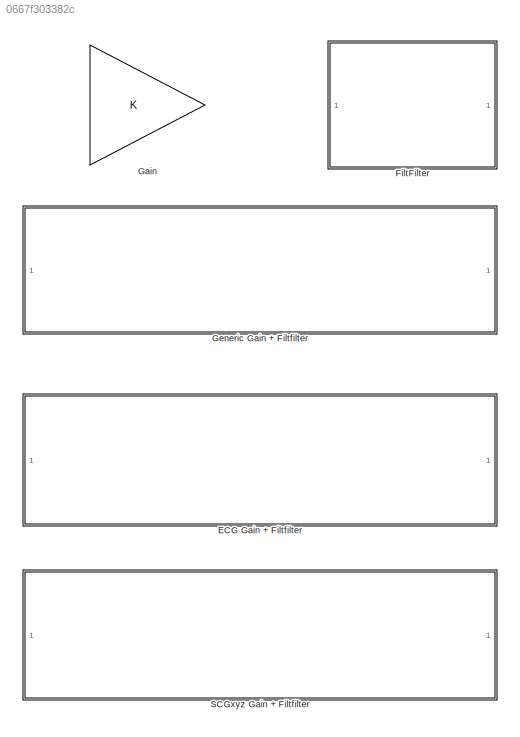
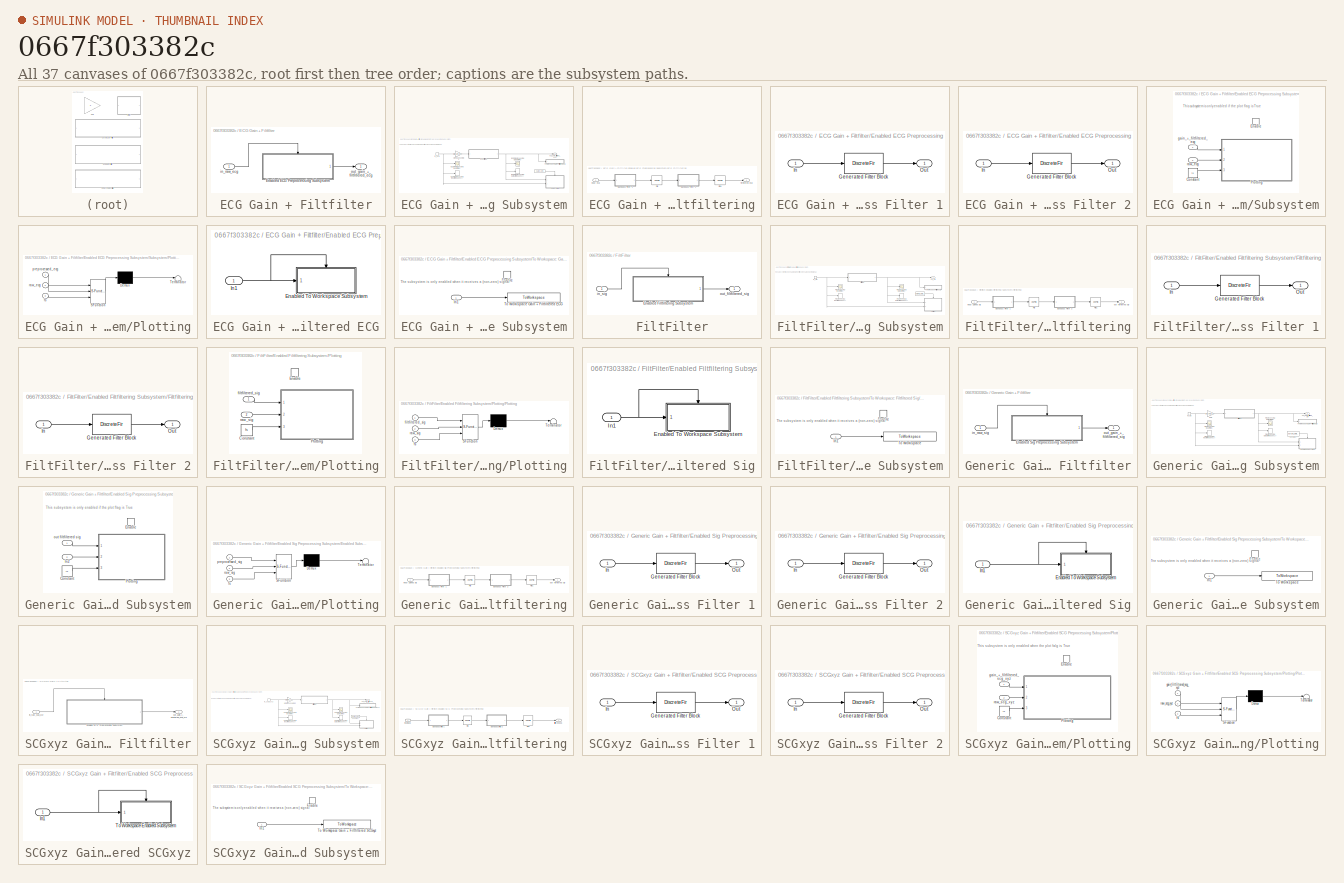
[diagram: thumbnail index - all 37 canvases of the model, root first then tree order]
MODEL slx_0667f303382c
KIND library
CONFIG AbsTol = auto
CONFIG EnableMultiTasking = off
CONFIG FixedStep = auto
CONFIG MaxStep = auto
CONFIG MinStep = auto
CONFIG RelTol = 1e-3
CONFIG SampleTimeConstraint = Unconstrained
CONFIG SolverName = VariableStepAuto
CONFIG StartTime = 0.0
CONFIG StopTime = 10.0
BLOCK [SubSystem] ECG Gain + Filtfilter
  Ports = [1, 1]
  RequestExecContextInheritance = off
BLOCK [SubSystem] ECG Gain + Filtfilter/Enabled ECG Preprocessing Subsystem
  Ports = [0, 1, 1]
  RequestExecContextInheritance = off
  TreatAsAtomicUnit = on
BLOCK [Constant] ECG Gain + Filtfilter/Enabled ECG Preprocessing Subsystem/ 
  Value = param_plotflag
BLOCK [SubSystem] ECG Gain + Filtfilter/Enabled ECG Preprocessing Subsystem/ECG Filtfiltering
  Ports = [1, 1]
  RequestExecContextInheritance = off
BLOCK [SubSystem] ECG Gain + Filtfilter/Enabled ECG Preprocessing Subsystem/ECG Filtfiltering/Bandpass Filter 1
  CopyFcn = fdesignblkfcn(gcbh, {'CopyFcn'});
  DialogController = fdesignblkfcn
  InitFcn = fdesignblkfcn(gcbh, {'InitFcn'});
  Ports = [1, 1]
  RequestExecContextInheritance = off
  UserDataPersistent = on
BLOCK [DiscreteFir] ECG Gain + Filtfilter/Enabled ECG Preprocessing Subsystem/ECG Filtfiltering/Bandpass Filter 1/Generated Filter Block
  Coefficients = [-0.0114243088354877773 0.00587624110456374388 0.00413946068324517157 0.00264334557424035672 0.00138774422276622192 0.00039597756815762733 -0.000357391963790950132 -0.000870027328167087902 -0.00118474210009046274 -0.0013114772414377189 -0.00130211118137258525 -0.00117028348293094116 -0.000969555288066135598 -0.000709991739662891794 -0.000441672338585462343 -0.000165596169411169614 7.38618239838010...<+24253ch>  <repeated x6 — deduplicated; at blocks: Generated Filter Block>
  InputPortMap = u0
  InputProcessing = Columns as channels (frame based)
  OutputPortMap = o0
  Ports = [1, 1]
  Tag = BlockMethodSubSystem
BLOCK [Inport] ECG Gain + Filtfilter/Enabled ECG Preprocessing Subsystem/ECG Filtfiltering/Bandpass Filter 1/In
BLOCK [Outport] ECG Gain + Filtfilter/Enabled ECG Preprocessing Subsystem/ECG Filtfiltering/Bandpass Filter 1/Out
  VectorParamsAs1DForOutWhenUnconnected = off
BLOCK [SubSystem] ECG Gain + Filtfilter/Enabled ECG Preprocessing Subsystem/ECG Filtfiltering/Bandpass Filter 2
  CopyFcn = fdesignblkfcn(gcbh, {'CopyFcn'});
  DialogController = fdesignblkfcn
  InitFcn = fdesignblkfcn(gcbh, {'InitFcn'});
  Ports = [1, 1]
  RequestExecContextInheritance = off
  UserDataPersistent = on
BLOCK [DiscreteFir] ECG Gain + Filtfilter/Enabled ECG Preprocessing Subsystem/ECG Filtfiltering/Bandpass Filter 2/Generated Filter Block
  InputPortMap = u0
  InputProcessing = Columns as channels (frame based)
  OutputPortMap = o0
  Ports = [1, 1]
  Tag = BlockMethodSubSystem
BLOCK [Inport] ECG Gain + Filtfilter/Enabled ECG Preprocessing Subsystem/ECG Filtfiltering/Bandpass Filter 2/In
BLOCK [Outport] ECG Gain + Filtfilter/Enabled ECG Preprocessing Subsystem/ECG Filtfiltering/Bandpass Filter 2/Out
  VectorParamsAs1DForOutWhenUnconnected = off
BLOCK [DSPFlip] ECG Gain + Filtfilter/Enabled ECG Preprocessing Subsystem/ECG Filtfiltering/Flip
BLOCK [DSPFlip] ECG Gain + Filtfilter/Enabled ECG Preprocessing Subsystem/ECG Filtfiltering/Flip1
BLOCK [Outport] ECG Gain + Filtfilter/Enabled ECG Preprocessing Subsystem/ECG Filtfiltering/filtfiltered ecg
  VectorParamsAs1DForOutWhenUnconnected = off
BLOCK [Inport] ECG Gain + Filtfilter/Enabled ECG Preprocessing Subsystem/ECG Filtfiltering/input ecg
BLOCK [SpectrumAnalyzer] ECG Gain + Filtfilter/Enabled ECG Preprocessing Subsystem/ECG Preprocessing Input (Frequency)
  Commented = on
  Ports = [1]
  ScopeSpecificationString = spbscopes.SpectrumAnalyzerBlockCfg('CurrentConfiguration', extmgr.ConfigurationSet(extmgr.Configuration('Core','General UI',true),extmgr.Configuration('Core','Source UI',true),extmgr.Configuration('Sources','WiredSimulink',true),extmgr.Configuration('Visuals','Spectrum',true,'AxesProperties',struct('Color',{[0 0 0],[0 0 0]},'XColor',{[0.686274509803922 0.686274509803922 0.686274509803922],[0.68627...<+2122ch>  <repeated x3 — deduplicated; at blocks: ECG Preprocessing Input (Frequency), Preprocessing Input (Frequency)>
BLOCK [Scope] ECG Gain + Filtfilter/Enabled ECG Preprocessing Subsystem/ECG Preprocessing Input (Time)
  Commented = on
  Floating = off
  NumInputPorts = 1
  Ports = [1]
  ScopeSpecificationString = Simulink.scopes.TimeScopeBlockCfg('CurrentConfiguration', extmgr.ConfigurationSet(extmgr.Configuration('Core','General UI',true),extmgr.Configuration('Core','Source UI',true),extmgr.Configuration('Sources','WiredSimulink',true,'DataLoggingMaxPoints','tot_samples','DataLoggingVariableName','ScopeData1'),extmgr.Configuration('Visuals','Time Domain',true,'InputProcessing','FrameProcessing','Serialize...<+1708ch>  <repeated x3 — deduplicated; at blocks: ECG Preprocessing Input (Time), Preprocessing Input (Time)>
BLOCK [SpectrumAnalyzer] ECG Gain + Filtfilter/Enabled ECG Preprocessing Subsystem/ECG Preprocessing Output (Frequency)
  Commented = on
  Ports = [1]
  ScopeSpecificationString = spbscopes.SpectrumAnalyzerBlockCfg('CurrentConfiguration', extmgr.ConfigurationSet(extmgr.Configuration('Core','General UI',true),extmgr.Configuration('Core','Source UI',true),extmgr.Configuration('Sources','WiredSimulink',true),extmgr.Configuration('Visuals','Spectrum',true,'AxesProperties',struct('Color',{[0 0 0],[0 0 0]},'XColor',{[0.686274509803922 0.686274509803922 0.686274509803922],[0.68627...<+2304ch>  <repeated x3 — deduplicated; at blocks: ECG Preprocessing Output (Frequency), Preprocessing Output (Frequency)>
BLOCK [Scope] ECG Gain + Filtfilter/Enabled ECG Preprocessing Subsystem/ECG Preprocessing Output (Time)
  Commented = on
  Floating = off
  NumInputPorts = 1
  Ports = [1]
  ScopeSpecificationString = Simulink.scopes.TimeScopeBlockCfg('CurrentConfiguration', extmgr.ConfigurationSet(extmgr.Configuration('Core','General UI',true),extmgr.Configuration('Core','Source UI',true),extmgr.Configuration('Sources','WiredSimulink',true,'DataLoggingMaxPoints','tot_samples','DataLoggingVariableName','ScopeData2'),extmgr.Configuration('Visuals','Time Domain',true,'InputProcessing','FrameProcessing','Serialize...<+1735ch>  <repeated x3 — deduplicated; at blocks: ECG Preprocessing Output (Time), Preprocessing Output (Time)>
BLOCK [SubSystem] ECG Gain + Filtfilter/Enabled ECG Preprocessing Subsystem/Subsystem
  Ports = [2, 0, 1]
  RequestExecContextInheritance = off
BLOCK [Constant] ECG Gain + Filtfilter/Enabled ECG Preprocessing Subsystem/Subsystem/Constant
  Value = fs
BLOCK [EnablePort] ECG Gain + Filtfilter/Enabled ECG Preprocessing Subsystem/Subsystem/Enable
  Ports = []
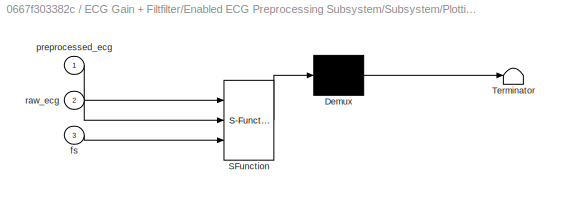
BLOCK [SubSystem] ECG Gain + Filtfilter/Enabled ECG Preprocessing Subsystem/Subsystem/Plotting
  ErrorFcn = Stateflow.Translate.translate
  PermitHierarchicalResolution = ExplicitOnly
  Ports = [3]
  RequestExecContextInheritance = off
  SFBlockType = MATLAB Function
  TreatAsAtomicUnit = on
BLOCK [Demux] ECG Gain + Filtfilter/Enabled ECG Preprocessing Subsystem/Subsystem/Plotting/ Demux 
  Outputs = 1
  Ports = [1, 1]
BLOCK [S-Function] ECG Gain + Filtfilter/Enabled ECG Preprocessing Subsystem/Subsystem/Plotting/ SFunction 
  EnableBusSupport = on
  FunctionName = sf_sfun
  PortCounts = [3 1]
  Ports = [3, 1]
  SFcnIsStateOwnerBlock = off
  SFunctionDeploymentMode = off
  Tag = Stateflow S-Function 3
BLOCK [Terminator] ECG Gain + Filtfilter/Enabled ECG Preprocessing Subsystem/Subsystem/Plotting/ Terminator 
BLOCK [Inport] ECG Gain + Filtfilter/Enabled ECG Preprocessing Subsystem/Subsystem/Plotting/fs
  Port = 3
BLOCK [Inport] ECG Gain + Filtfilter/Enabled ECG Preprocessing Subsystem/Subsystem/Plotting/preprocessed_ecg
BLOCK [Inport] ECG Gain + Filtfilter/Enabled ECG Preprocessing Subsystem/Subsystem/Plotting/raw_ecg
  Port = 2
BLOCK [Inport] ECG Gain + Filtfilter/Enabled ECG Preprocessing Subsystem/Subsystem/gain_+_filtfiltered_ecg
  NameLocation = left
BLOCK [Inport] ECG Gain + Filtfilter/Enabled ECG Preprocessing Subsystem/Subsystem/raw_ecg
  NameLocation = left
  Port = 2
BLOCK [SubSystem] ECG Gain + Filtfilter/Enabled ECG Preprocessing Subsystem/To Workspace: Gain + Filtfiltered ECG
  Ports = [1]
  RequestExecContextInheritance = off
BLOCK [SubSystem] ECG Gain + Filtfilter/Enabled ECG Preprocessing Subsystem/To Workspace: Gain + Filtfiltered ECG/Enabled To Workspace Subsystem
  Ports = [1, 0, 1]
  RequestExecContextInheritance = off
  TreatAsAtomicUnit = on
BLOCK [EnablePort] ECG Gain + Filtfilter/Enabled ECG Preprocessing Subsystem/To Workspace: Gain + Filtfiltered ECG/Enabled To Workspace Subsystem/Enable
  Ports = []
BLOCK [Inport] ECG Gain + Filtfilter/Enabled ECG Preprocessing Subsystem/To Workspace: Gain + Filtfiltered ECG/Enabled To Workspace Subsystem/In1
BLOCK [ToWorkspace] ECG Gain + Filtfilter/Enabled ECG Preprocessing Subsystem/To Workspace: Gain + Filtfiltered ECG/Enabled To Workspace Subsystem/To Workspace Gain + Filtfiltered ECG
  FixptAsFi = on
  MaxDataPoints = inf
  Ports = [1]
  SampleTime = -1
  SaveFormat = Structure
  VariableName = out_gain_filfiltered_ecg
BLOCK [Inport] ECG Gain + Filtfilter/Enabled ECG Preprocessing Subsystem/To Workspace: Gain + Filtfiltered ECG/In1
BLOCK [Gain] ECG Gain + Filtfilter/Enabled ECG Preprocessing Subsystem/V to mV Conversion
  Gain = param_ecg_gain_mv
BLOCK [EnablePort] ECG Gain + Filtfilter/Enabled ECG Preprocessing Subsystem/in_ecg
  Ports = [0, 1]
  ShowOutputPort = on
BLOCK [Outport] ECG Gain + Filtfilter/Enabled ECG Preprocessing Subsystem/out_gain_filtfiltered_ecg
  VectorParamsAs1DForOutWhenUnconnected = off
BLOCK [Inport] ECG Gain + Filtfilter/in_raw_ecg
BLOCK [Outport] ECG Gain + Filtfilter/out_gain_+_filtfitlered_ecg
  VectorParamsAs1DForOutWhenUnconnected = off
BLOCK [SubSystem] FiltFilter
  Ports = [1, 1]
  RequestExecContextInheritance = off
BLOCK [SubSystem] FiltFilter/Enabled Filtfiltering Subsystem
  Ports = [0, 1, 1]
  RequestExecContextInheritance = off
  TreatAsAtomicUnit = on
BLOCK [Constant] FiltFilter/Enabled Filtfiltering Subsystem/ 
  Value = param_plotflag
BLOCK [SubSystem] FiltFilter/Enabled Filtfiltering Subsystem/Filtfiltering
  Ports = [1, 1]
  RequestExecContextInheritance = off
BLOCK [SubSystem] FiltFilter/Enabled Filtfiltering Subsystem/Filtfiltering/Bandpass Filter 1
  CopyFcn = fdesignblkfcn(gcbh, {'CopyFcn'});
  DialogController = fdesignblkfcn
  InitFcn = fdesignblkfcn(gcbh, {'InitFcn'});
  Ports = [1, 1]
  RequestExecContextInheritance = off
  UserDataPersistent = on
BLOCK [DiscreteFir] FiltFilter/Enabled Filtfiltering Subsystem/Filtfiltering/Bandpass Filter 1/Generated Filter Block
  InputPortMap = u0
  InputProcessing = Columns as channels (frame based)
  OutputPortMap = o0
  Ports = [1, 1]
  Tag = BlockMethodSubSystem
BLOCK [Inport] FiltFilter/Enabled Filtfiltering Subsystem/Filtfiltering/Bandpass Filter 1/In
BLOCK [Outport] FiltFilter/Enabled Filtfiltering Subsystem/Filtfiltering/Bandpass Filter 1/Out
  VectorParamsAs1DForOutWhenUnconnected = off
BLOCK [SubSystem] FiltFilter/Enabled Filtfiltering Subsystem/Filtfiltering/Bandpass Filter 2
  CopyFcn = fdesignblkfcn(gcbh, {'CopyFcn'});
  DialogController = fdesignblkfcn
  InitFcn = fdesignblkfcn(gcbh, {'InitFcn'});
  Ports = [1, 1]
  RequestExecContextInheritance = off
  UserDataPersistent = on
BLOCK [DiscreteFir] FiltFilter/Enabled Filtfiltering Subsystem/Filtfiltering/Bandpass Filter 2/Generated Filter Block
  InputPortMap = u0
  InputProcessing = Columns as channels (frame based)
  OutputPortMap = o0
  Ports = [1, 1]
  Tag = BlockMethodSubSystem
BLOCK [Inport] FiltFilter/Enabled Filtfiltering Subsystem/Filtfiltering/Bandpass Filter 2/In
BLOCK [Outport] FiltFilter/Enabled Filtfiltering Subsystem/Filtfiltering/Bandpass Filter 2/Out
  VectorParamsAs1DForOutWhenUnconnected = off
BLOCK [DSPFlip] FiltFilter/Enabled Filtfiltering Subsystem/Filtfiltering/Flip
BLOCK [DSPFlip] FiltFilter/Enabled Filtfiltering Subsystem/Filtfiltering/Flip1
BLOCK [Inport] FiltFilter/Enabled Filtfiltering Subsystem/Filtfiltering/input gained sig
BLOCK [Outport] FiltFilter/Enabled Filtfiltering Subsystem/Filtfiltering/out filtfiltered sig
  VectorParamsAs1DForOutWhenUnconnected = off
BLOCK [SubSystem] FiltFilter/Enabled Filtfiltering Subsystem/Plotting
  Ports = [2, 0, 1]
  RequestExecContextInheritance = off
BLOCK [Constant] FiltFilter/Enabled Filtfiltering Subsystem/Plotting/Constant
  Value = fs
BLOCK [EnablePort] FiltFilter/Enabled Filtfiltering Subsystem/Plotting/Enable
  Ports = []
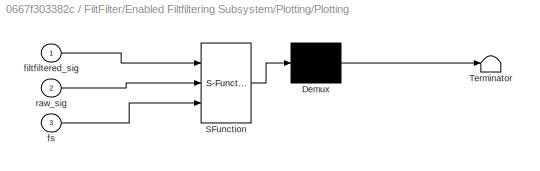
BLOCK [SubSystem] FiltFilter/Enabled Filtfiltering Subsystem/Plotting/Plotting
  ErrorFcn = Stateflow.Translate.translate
  PermitHierarchicalResolution = ExplicitOnly
  Ports = [3]
  RequestExecContextInheritance = off
  SFBlockType = MATLAB Function
  TreatAsAtomicUnit = on
BLOCK [Demux] FiltFilter/Enabled Filtfiltering Subsystem/Plotting/Plotting/ Demux 
  Outputs = 1
  Ports = [1, 1]
BLOCK [S-Function] FiltFilter/Enabled Filtfiltering Subsystem/Plotting/Plotting/ SFunction 
  EnableBusSupport = off
  FunctionName = sf_sfun
  PortCounts = [3 1]
  Ports = [3, 1]
  SFcnIsStateOwnerBlock = off
  SFunctionDeploymentMode = off
  Tag = Stateflow S-Function 2
BLOCK [Terminator] FiltFilter/Enabled Filtfiltering Subsystem/Plotting/Plotting/ Terminator 
BLOCK [Inport] FiltFilter/Enabled Filtfiltering Subsystem/Plotting/Plotting/filtfiltered_sig
BLOCK [Inport] FiltFilter/Enabled Filtfiltering Subsystem/Plotting/Plotting/fs
  Port = 3
BLOCK [Inport] FiltFilter/Enabled Filtfiltering Subsystem/Plotting/Plotting/raw_sig
  Port = 2
BLOCK [Inport] FiltFilter/Enabled Filtfiltering Subsystem/Plotting/filtfiltered_sig
BLOCK [Inport] FiltFilter/Enabled Filtfiltering Subsystem/Plotting/raw_sig
  Port = 2
BLOCK [SpectrumAnalyzer] FiltFilter/Enabled Filtfiltering Subsystem/Preprocessing Input (Frequency)
  Commented = on
  Ports = [1]
BLOCK [Scope] FiltFilter/Enabled Filtfiltering Subsystem/Preprocessing Input (Time)
  Commented = on
  Floating = off
  NumInputPorts = 1
  Ports = [1]
BLOCK [SpectrumAnalyzer] FiltFilter/Enabled Filtfiltering Subsystem/Preprocessing Output (Frequency)
  Commented = on
  Ports = [1]
BLOCK [Scope] FiltFilter/Enabled Filtfiltering Subsystem/Preprocessing Output (Time)
  Commented = on
  Floating = off
  NumInputPorts = 1
  Ports = [1]
BLOCK [SubSystem] FiltFilter/Enabled Filtfiltering Subsystem/To Workspace: Filtfiltered Sig
  Ports = [1]
  RequestExecContextInheritance = off
BLOCK [SubSystem] FiltFilter/Enabled Filtfiltering Subsystem/To Workspace: Filtfiltered Sig/Enabled To Workspace Subsystem
  Ports = [1, 0, 1]
  RequestExecContextInheritance = off
  TreatAsAtomicUnit = on
BLOCK [EnablePort] FiltFilter/Enabled Filtfiltering Subsystem/To Workspace: Filtfiltered Sig/Enabled To Workspace Subsystem/Enable
  Ports = []
BLOCK [Inport] FiltFilter/Enabled Filtfiltering Subsystem/To Workspace: Filtfiltered Sig/Enabled To Workspace Subsystem/In1
BLOCK [ToWorkspace] FiltFilter/Enabled Filtfiltering Subsystem/To Workspace: Filtfiltered Sig/Enabled To Workspace Subsystem/To Workspace
  FixptAsFi = on
  MaxDataPoints = inf
  Ports = [1]
  SampleTime = -1
  SaveFormat = Structure
  VariableName = out_sig_filtfiltered
BLOCK [Inport] FiltFilter/Enabled Filtfiltering Subsystem/To Workspace: Filtfiltered Sig/In1
BLOCK [EnablePort] FiltFilter/Enabled Filtfiltering Subsystem/in_sig
  Ports = [0, 1]
  ShowOutputPort = on
BLOCK [Outport] FiltFilter/Enabled Filtfiltering Subsystem/out_sig
  VectorParamsAs1DForOutWhenUnconnected = off
BLOCK [Inport] FiltFilter/in_sig
  NameLocation = left
BLOCK [Outport] FiltFilter/out_filtfiltered_sig
  NameLocation = right
  VectorParamsAs1DForOutWhenUnconnected = off
BLOCK [Gain] Gain
BLOCK [SubSystem] Generic Gain + Filtfilter
  Ports = [1, 1]
  RequestExecContextInheritance = off
BLOCK [SubSystem] Generic Gain + Filtfilter/Enabled Sig Preprocessing Subsystem
  Ports = [0, 1, 1]
  RequestExecContextInheritance = off
  TreatAsAtomicUnit = on
BLOCK [Constant] Generic Gain + Filtfilter/Enabled Sig Preprocessing Subsystem/Constant
  Value = param_plotflag
BLOCK [SubSystem] Generic Gain + Filtfilter/Enabled Sig Preprocessing Subsystem/Enabled Subsystem
  Ports = [2, 0, 1]
  RequestExecContextInheritance = off
  TreatAsAtomicUnit = on
BLOCK [Constant] Generic Gain + Filtfilter/Enabled Sig Preprocessing Subsystem/Enabled Subsystem/Constant
  Value = fs
BLOCK [EnablePort] Generic Gain + Filtfilter/Enabled Sig Preprocessing Subsystem/Enabled Subsystem/Enable
  Ports = []
BLOCK [Inport] Generic Gain + Filtfilter/Enabled Sig Preprocessing Subsystem/Enabled Subsystem/In2
  Port = 2
BLOCK [SubSystem] Generic Gain + Filtfilter/Enabled Sig Preprocessing Subsystem/Enabled Subsystem/Plotting
  ErrorFcn = Stateflow.Translate.translate
  PermitHierarchicalResolution = ExplicitOnly
  Ports = [3]
  RequestExecContextInheritance = off
  SFBlockType = MATLAB Function
  TreatAsAtomicUnit = on
BLOCK [Demux] Generic Gain + Filtfilter/Enabled Sig Preprocessing Subsystem/Enabled Subsystem/Plotting/ Demux 
  Outputs = 1
  Ports = [1, 1]
BLOCK [S-Function] Generic Gain + Filtfilter/Enabled Sig Preprocessing Subsystem/Enabled Subsystem/Plotting/ SFunction 
  EnableBusSupport = off
  FunctionName = sf_sfun
  PortCounts = [3 1]
  Ports = [3, 1]
  SFcnIsStateOwnerBlock = off
  SFunctionDeploymentMode = off
  Tag = Stateflow S-Function 1
BLOCK [Terminator] Generic Gain + Filtfilter/Enabled Sig Preprocessing Subsystem/Enabled Subsystem/Plotting/ Terminator 
BLOCK [Inport] Generic Gain + Filtfilter/Enabled Sig Preprocessing Subsystem/Enabled Subsystem/Plotting/fs
  Port = 3
BLOCK [Inport] Generic Gain + Filtfilter/Enabled Sig Preprocessing Subsystem/Enabled Subsystem/Plotting/preprocessed_sig
BLOCK [Inport] Generic Gain + Filtfilter/Enabled Sig Preprocessing Subsystem/Enabled Subsystem/Plotting/raw_sig
  Port = 2
BLOCK [Inport] Generic Gain + Filtfilter/Enabled Sig Preprocessing Subsystem/Enabled Subsystem/out filtfiltered sig
BLOCK [SubSystem] Generic Gain + Filtfilter/Enabled Sig Preprocessing Subsystem/Filtfiltering
  Ports = [1, 1]
  RequestExecContextInheritance = off
BLOCK [SubSystem] Generic Gain + Filtfilter/Enabled Sig Preprocessing Subsystem/Filtfiltering/Bandpass Filter 1
  CopyFcn = fdesignblkfcn(gcbh, {'CopyFcn'});
  DialogController = fdesignblkfcn
  InitFcn = fdesignblkfcn(gcbh, {'InitFcn'});
  Ports = [1, 1]
  RequestExecContextInheritance = off
  UserDataPersistent = on
BLOCK [DiscreteFir] Generic Gain + Filtfilter/Enabled Sig Preprocessing Subsystem/Filtfiltering/Bandpass Filter 1/Generated Filter Block
  InputPortMap = u0
  InputProcessing = Columns as channels (frame based)
  OutputPortMap = o0
  Ports = [1, 1]
  Tag = BlockMethodSubSystem
BLOCK [Inport] Generic Gain + Filtfilter/Enabled Sig Preprocessing Subsystem/Filtfiltering/Bandpass Filter 1/In
BLOCK [Outport] Generic Gain + Filtfilter/Enabled Sig Preprocessing Subsystem/Filtfiltering/Bandpass Filter 1/Out
  VectorParamsAs1DForOutWhenUnconnected = off
BLOCK [SubSystem] Generic Gain + Filtfilter/Enabled Sig Preprocessing Subsystem/Filtfiltering/Bandpass Filter 2
  CopyFcn = fdesignblkfcn(gcbh, {'CopyFcn'});
  DialogController = fdesignblkfcn
  InitFcn = fdesignblkfcn(gcbh, {'InitFcn'});
  Ports = [1, 1]
  RequestExecContextInheritance = off
  UserDataPersistent = on
BLOCK [DiscreteFir] Generic Gain + Filtfilter/Enabled Sig Preprocessing Subsystem/Filtfiltering/Bandpass Filter 2/Generated Filter Block
  InputPortMap = u0
  InputProcessing = Columns as channels (frame based)
  OutputPortMap = o0
  Ports = [1, 1]
  Tag = BlockMethodSubSystem
BLOCK [Inport] Generic Gain + Filtfilter/Enabled Sig Preprocessing Subsystem/Filtfiltering/Bandpass Filter 2/In
BLOCK [Outport] Generic Gain + Filtfilter/Enabled Sig Preprocessing Subsystem/Filtfiltering/Bandpass Filter 2/Out
  VectorParamsAs1DForOutWhenUnconnected = off
BLOCK [DSPFlip] Generic Gain + Filtfilter/Enabled Sig Preprocessing Subsystem/Filtfiltering/Flip
BLOCK [DSPFlip] Generic Gain + Filtfilter/Enabled Sig Preprocessing Subsystem/Filtfiltering/Flip1
BLOCK [Inport] Generic Gain + Filtfilter/Enabled Sig Preprocessing Subsystem/Filtfiltering/input gained sig
BLOCK [Outport] Generic Gain + Filtfilter/Enabled Sig Preprocessing Subsystem/Filtfiltering/out filtfiltered sig
  VectorParamsAs1DForOutWhenUnconnected = off
BLOCK [Gain] Generic Gain + Filtfilter/Enabled Sig Preprocessing Subsystem/Gain
  Gain = param_ecg_gain_mv
BLOCK [SpectrumAnalyzer] Generic Gain + Filtfilter/Enabled Sig Preprocessing Subsystem/Preprocessing Input (Frequency)
  Commented = on
  Ports = [1]
BLOCK [Scope] Generic Gain + Filtfilter/Enabled Sig Preprocessing Subsystem/Preprocessing Input (Time)
  Commented = on
  Floating = off
  NumInputPorts = 1
  Ports = [1]
BLOCK [SpectrumAnalyzer] Generic Gain + Filtfilter/Enabled Sig Preprocessing Subsystem/Preprocessing Output (Frequency)
  Commented = on
  Ports = [1]
BLOCK [Scope] Generic Gain + Filtfilter/Enabled Sig Preprocessing Subsystem/Preprocessing Output (Time)
  Commented = on
  Floating = off
  NumInputPorts = 1
  Ports = [1]
BLOCK [SubSystem] Generic Gain + Filtfilter/Enabled Sig Preprocessing Subsystem/To Workspace: Gain + Filtfiltered Sig
  Ports = [1]
  RequestExecContextInheritance = off
BLOCK [SubSystem] Generic Gain + Filtfilter/Enabled Sig Preprocessing Subsystem/To Workspace: Gain + Filtfiltered Sig/Enabled To Workspace Subsystem
  Ports = [1, 0, 1]
  RequestExecContextInheritance = off
  TreatAsAtomicUnit = on
BLOCK [EnablePort] Generic Gain + Filtfilter/Enabled Sig Preprocessing Subsystem/To Workspace: Gain + Filtfiltered Sig/Enabled To Workspace Subsystem/Enable
  Ports = []
BLOCK [Inport] Generic Gain + Filtfilter/Enabled Sig Preprocessing Subsystem/To Workspace: Gain + Filtfiltered Sig/Enabled To Workspace Subsystem/In1
BLOCK [ToWorkspace] Generic Gain + Filtfilter/Enabled Sig Preprocessing Subsystem/To Workspace: Gain + Filtfiltered Sig/Enabled To Workspace Subsystem/To Workspace
  FixptAsFi = on
  MaxDataPoints = inf
  Ports = [1]
  SampleTime = -1
  SaveFormat = Structure
  VariableName = out_gain_filfiltered_sig
BLOCK [Inport] Generic Gain + Filtfilter/Enabled Sig Preprocessing Subsystem/To Workspace: Gain + Filtfiltered Sig/In1
BLOCK [EnablePort] Generic Gain + Filtfilter/Enabled Sig Preprocessing Subsystem/in_sig
  Ports = [0, 1]
  ShowOutputPort = on
BLOCK [Outport] Generic Gain + Filtfilter/Enabled Sig Preprocessing Subsystem/out_gain_filtfiltered_sig
  VectorParamsAs1DForOutWhenUnconnected = off
BLOCK [Inport] Generic Gain + Filtfilter/in_raw_sig
  NameLocation = left
BLOCK [Outport] Generic Gain + Filtfilter/out_gain_+_filtfiltered_sig
  NameLocation = right
  VectorParamsAs1DForOutWhenUnconnected = off
BLOCK [SubSystem] SCGxyz Gain + Filtfilter
  Ports = [1, 1]
  RequestExecContextInheritance = off
BLOCK [SubSystem] SCGxyz Gain + Filtfilter/Enabled SCG Preprocessing Subsystem
  Ports = [0, 1, 1]
  RequestExecContextInheritance = off
  TreatAsAtomicUnit = on
BLOCK [Constant] SCGxyz Gain + Filtfilter/Enabled SCG Preprocessing Subsystem/Constant
  Value = param_plotflag
BLOCK [SubSystem] SCGxyz Gain + Filtfilter/Enabled SCG Preprocessing Subsystem/Filtfiltering
  Ports = [1, 1]
  RequestExecContextInheritance = off
BLOCK [Inport] SCGxyz Gain + Filtfilter/Enabled SCG Preprocessing Subsystem/Filtfiltering/ input SCG
BLOCK [SubSystem] SCGxyz Gain + Filtfilter/Enabled SCG Preprocessing Subsystem/Filtfiltering/Bandpass Filter 1
  CopyFcn = fdesignblkfcn(gcbh, {'CopyFcn'});
  DialogController = fdesignblkfcn
  InitFcn = fdesignblkfcn(gcbh, {'InitFcn'});
  Ports = [1, 1]
  RequestExecContextInheritance = off
  UserDataPersistent = on
BLOCK [DiscreteFir] SCGxyz Gain + Filtfilter/Enabled SCG Preprocessing Subsystem/Filtfiltering/Bandpass Filter 1/Generated Filter Block
  Coefficients = [-0.00978480817658220967 0.00796999512757378195 0.00147001916949950507 -0.00206976963634554088 -0.00243890991203639124 -0.000924134149517863001 0.000721734906664772908 0.00129711475091687537 0.000656253913654551951 -0.000505332991406271686 -0.0012801272291147899 -0.00118584056106384888 -0.000396379626042962676 0.000462570629011344568 0.00079523934067100995 0.000413152706797699921 -0.00037351837793...<+17520ch>
  InputPortMap = u0
  InputProcessing = Columns as channels (frame based)
  OutputPortMap = o0
  Ports = [1, 1]
  Tag = BlockMethodSubSystem
BLOCK [Inport] SCGxyz Gain + Filtfilter/Enabled SCG Preprocessing Subsystem/Filtfiltering/Bandpass Filter 1/In
BLOCK [Outport] SCGxyz Gain + Filtfilter/Enabled SCG Preprocessing Subsystem/Filtfiltering/Bandpass Filter 1/Out
  VectorParamsAs1DForOutWhenUnconnected = off
BLOCK [SubSystem] SCGxyz Gain + Filtfilter/Enabled SCG Preprocessing Subsystem/Filtfiltering/Bandpass Filter 2
  CopyFcn = fdesignblkfcn(gcbh, {'CopyFcn'});
  DialogController = fdesignblkfcn
  InitFcn = fdesignblkfcn(gcbh, {'InitFcn'});
  Ports = [1, 1]
  RequestExecContextInheritance = off
  UserDataPersistent = on
BLOCK [DiscreteFir] SCGxyz Gain + Filtfilter/Enabled SCG Preprocessing Subsystem/Filtfiltering/Bandpass Filter 2/Generated Filter Block
  Coefficients = [-0.00978480817658220967 0.00796999512757378195 0.00147001916949950507 -0.00206976963634554088 -0.00243890991203639124 -0.000924134149517863001 0.000721734906664772908 0.00129711475091687537 0.000656253913654551951 -0.000505332991406271686 -0.0012801272291147899 -0.00118584056106384888 -0.000396379626042962676 0.000462570629011344568 0.00079523934067100995 0.000413152706797699921 -0.00037351837793...<+17520ch>
  InputPortMap = u0
  InputProcessing = Columns as channels (frame based)
  OutputPortMap = o0
  Ports = [1, 1]
  Tag = BlockMethodSubSystem
BLOCK [Inport] SCGxyz Gain + Filtfilter/Enabled SCG Preprocessing Subsystem/Filtfiltering/Bandpass Filter 2/In
BLOCK [Outport] SCGxyz Gain + Filtfilter/Enabled SCG Preprocessing Subsystem/Filtfiltering/Bandpass Filter 2/Out
  VectorParamsAs1DForOutWhenUnconnected = off
BLOCK [DSPFlip] SCGxyz Gain + Filtfilter/Enabled SCG Preprocessing Subsystem/Filtfiltering/Flip
BLOCK [DSPFlip] SCGxyz Gain + Filtfilter/Enabled SCG Preprocessing Subsystem/Filtfiltering/Flip1
BLOCK [Outport] SCGxyz Gain + Filtfilter/Enabled SCG Preprocessing Subsystem/Filtfiltering/filtfiltered SCG
  VectorParamsAs1DForOutWhenUnconnected = off
BLOCK [SubSystem] SCGxyz Gain + Filtfilter/Enabled SCG Preprocessing Subsystem/Plotting
  Ports = [2, 0, 1]
  RequestExecContextInheritance = off
BLOCK [Constant] SCGxyz Gain + Filtfilter/Enabled SCG Preprocessing Subsystem/Plotting/Constant
  Value = fs
BLOCK [EnablePort] SCGxyz Gain + Filtfilter/Enabled SCG Preprocessing Subsystem/Plotting/Enable
  Ports = []
BLOCK [SubSystem] SCGxyz Gain + Filtfilter/Enabled SCG Preprocessing Subsystem/Plotting/Plotting
  ErrorFcn = Stateflow.Translate.translate
  PermitHierarchicalResolution = ExplicitOnly
  Ports = [3]
  RequestExecContextInheritance = off
  SFBlockType = MATLAB Function
  TreatAsAtomicUnit = on
BLOCK [Demux] SCGxyz Gain + Filtfilter/Enabled SCG Preprocessing Subsystem/Plotting/Plotting/ Demux 
  Outputs = 1
  Ports = [1, 1]
BLOCK [S-Function] SCGxyz Gain + Filtfilter/Enabled SCG Preprocessing Subsystem/Plotting/Plotting/ SFunction 
  EnableBusSupport = on
  FunctionName = sf_sfun
  PortCounts = [3 1]
  Ports = [3, 1]
  SFcnIsStateOwnerBlock = off
  SFunctionDeploymentMode = off
  Tag = Stateflow S-Function 5
BLOCK [Terminator] SCGxyz Gain + Filtfilter/Enabled SCG Preprocessing Subsystem/Plotting/Plotting/ Terminator 
BLOCK [Inport] SCGxyz Gain + Filtfilter/Enabled SCG Preprocessing Subsystem/Plotting/Plotting/fs
  Port = 3
BLOCK [Inport] SCGxyz Gain + Filtfilter/Enabled SCG Preprocessing Subsystem/Plotting/Plotting/gain_filtfiltered_scg_xyz
BLOCK [Inport] SCGxyz Gain + Filtfilter/Enabled SCG Preprocessing Subsystem/Plotting/Plotting/raw_scg_xyz
  Port = 2
BLOCK [Inport] SCGxyz Gain + Filtfilter/Enabled SCG Preprocessing Subsystem/Plotting/gain_+_filtfiltered_scg_xyz
  NameLocation = left
BLOCK [Inport] SCGxyz Gain + Filtfilter/Enabled SCG Preprocessing Subsystem/Plotting/raw_scg_xyz
  NameLocation = left
  Port = 2
BLOCK [SpectrumAnalyzer] SCGxyz Gain + Filtfilter/Enabled SCG Preprocessing Subsystem/SCG Preprocessing Input (Frequency)
  Commented = on
  Ports = [1]
  ScopeSpecificationString = spbscopes.SpectrumAnalyzerBlockCfg('CurrentConfiguration', extmgr.ConfigurationSet(extmgr.Configuration('Core','General UI',true),extmgr.Configuration('Core','Source UI',true),extmgr.Configuration('Sources','WiredSimulink',true),extmgr.Configuration('Sources','SimulinkEvent',false),extmgr.Configuration('Sources','Simulink',false),extmgr.Configuration('Sources','SPTool',false),extmgr.Configuration(...<+3857ch>
BLOCK [Scope] SCGxyz Gain + Filtfilter/Enabled SCG Preprocessing Subsystem/SCG Preprocessing Input (Time)
  Commented = on
  Floating = off
  NumInputPorts = 1
  Ports = [1]
  ScopeSpecificationString = Simulink.scopes.TimeScopeBlockCfg('CurrentConfiguration', extmgr.ConfigurationSet(extmgr.Configuration('Core','General UI',true),extmgr.Configuration('Core','Source UI',true),extmgr.Configuration('Sources','WiredSimulink',true,'DataLoggingMaxPoints','tot_samples','DataLoggingVariableName','ScopeData3'),extmgr.Configuration('Visuals','Time Domain',true,'InputProcessing','FrameProcessing','Serialize...<+1769ch>
BLOCK [SpectrumAnalyzer] SCGxyz Gain + Filtfilter/Enabled SCG Preprocessing Subsystem/SCG Preprocessing Output (Frequency)
  Commented = on
  Ports = [1]
  ScopeSpecificationString = spbscopes.SpectrumAnalyzerBlockCfg('CurrentConfiguration', extmgr.ConfigurationSet(extmgr.Configuration('Core','General UI',true),extmgr.Configuration('Core','Source UI',true),extmgr.Configuration('Sources','WiredSimulink',true),extmgr.Configuration('Sources','SimulinkEvent',false),extmgr.Configuration('Sources','Simulink',false),extmgr.Configuration('Sources','SPTool',false),extmgr.Configuration(...<+3927ch>
BLOCK [Scope] SCGxyz Gain + Filtfilter/Enabled SCG Preprocessing Subsystem/SCG Preprocessing Output (Time)
  Commented = on
  Floating = off
  NumInputPorts = 1
  Ports = [1]
  ScopeSpecificationString = Simulink.scopes.TimeScopeBlockCfg('CurrentConfiguration', extmgr.ConfigurationSet(extmgr.Configuration('Core','General UI',true),extmgr.Configuration('Core','Source UI',true),extmgr.Configuration('Sources','WiredSimulink',true,'DataLoggingMaxPoints','tot_samples'),extmgr.Configuration('Visuals','Time Domain',true,'InputProcessing','FrameProcessing','SerializedDisplays',{struct('MinYLimReal','-50.6...<+1764ch>
BLOCK [SubSystem] SCGxyz Gain + Filtfilter/Enabled SCG Preprocessing Subsystem/To Workspace: Gain + Filtfiltered SCGxyz
  Ports = [1]
  RequestExecContextInheritance = off
BLOCK [Inport] SCGxyz Gain + Filtfilter/Enabled SCG Preprocessing Subsystem/To Workspace: Gain + Filtfiltered SCGxyz/In1
BLOCK [SubSystem] SCGxyz Gain + Filtfilter/Enabled SCG Preprocessing Subsystem/To Workspace: Gain + Filtfiltered SCGxyz/To Workspace Enabled Subsystem
  Ports = [1, 0, 1]
  RequestExecContextInheritance = off
  TreatAsAtomicUnit = on
BLOCK [EnablePort] SCGxyz Gain + Filtfilter/Enabled SCG Preprocessing Subsystem/To Workspace: Gain + Filtfiltered SCGxyz/To Workspace Enabled Subsystem/Enable
  Ports = []
BLOCK [Inport] SCGxyz Gain + Filtfilter/Enabled SCG Preprocessing Subsystem/To Workspace: Gain + Filtfiltered SCGxyz/To Workspace Enabled Subsystem/In1
BLOCK [ToWorkspace] SCGxyz Gain + Filtfilter/Enabled SCG Preprocessing Subsystem/To Workspace: Gain + Filtfiltered SCGxyz/To Workspace Enabled Subsystem/To Workspace Gain + Filtfiltered SCGxyz
  FixptAsFi = on
  MaxDataPoints = inf
  Ports = [1]
  SampleTime = -1
  SaveFormat = Structure
  VariableName = out_gain_filfiltered_scgxyz
BLOCK [Gain] SCGxyz Gain + Filtfilter/Enabled SCG Preprocessing Subsystem/V to mg Conversion
  Gain = param_scg_gain_mg
BLOCK [EnablePort] SCGxyz Gain + Filtfilter/Enabled SCG Preprocessing Subsystem/in_scg_xyz
  Ports = [0, 1]
  ShowOutputPort = on
BLOCK [Outport] SCGxyz Gain + Filtfilter/Enabled SCG Preprocessing Subsystem/out_gain_filtfilt_scg_xyz
  VectorParamsAs1DForOutWhenUnconnected = off
BLOCK [Inport] SCGxyz Gain + Filtfilter/in_raw_scg_xyz
BLOCK [Outport] SCGxyz Gain + Filtfilter/out_gain_+_filtfiltered_scg_xyz
  VectorParamsAs1DForOutWhenUnconnected = off
ANNOTATION ECG Gain + Filtfilter/Enabled ECG Preprocessing Subsystem: The subsystem is only enabled when it receives a (non-zero) signal
ANNOTATION ECG Gain + Filtfilter/Enabled ECG Preprocessing Subsystem/Subsystem: This subsystem is only enabled if the plot flag is True
ANNOTATION ECG Gain + Filtfilter/Enabled ECG Preprocessing Subsystem/To Workspace: Gain + Filtfiltered ECG/Enabled To Workspace Subsystem: The subsystem is only enabled when it receives a (non-zero) signal
ANNOTATION FiltFilter/Enabled Filtfiltering Subsystem: The subsystem is only enabled when it receives a (non-zero) signal
ANNOTATION FiltFilter/Enabled Filtfiltering Subsystem/To Workspace: Filtfiltered Sig/Enabled To Workspace Subsystem: The subsystem is only enabled when it receives a (non-zero) signal
ANNOTATION Generic Gain + Filtfilter/Enabled Sig Preprocessing Subsystem: The subsystem is only enabled when it receives a (non-zero) signal
ANNOTATION Generic Gain + Filtfilter/Enabled Sig Preprocessing Subsystem/Enabled Subsystem: This subsystem is only enabled if the plot flag is True
ANNOTATION Generic Gain + Filtfilter/Enabled Sig Preprocessing Subsystem/To Workspace: Gain + Filtfiltered Sig/Enabled To Workspace Subsystem: The subsystem is only enabled when it receives a (non-zero) signal
ANNOTATION SCGxyz Gain + Filtfilter/Enabled SCG Preprocessing Subsystem: The subsystem is only enabled when it receives a (non-zero) signal
ANNOTATION SCGxyz Gain + Filtfilter/Enabled SCG Preprocessing Subsystem/Plotting: This subsystem is only enabled when the plot falg is True
ANNOTATION SCGxyz Gain + Filtfilter/Enabled SCG Preprocessing Subsystem/To Workspace: Gain + Filtfiltered SCGxyz/To Workspace Enabled Subsystem: The subsystem is only enabled when it receives a (non-zero) signal
LINE ECG Gain + Filtfilter/Enabled ECG Preprocessing Subsystem/ :1 -> ECG Gain + Filtfilter/Enabled ECG Preprocessing Subsystem/Subsystem:enable
LINE ECG Gain + Filtfilter/Enabled ECG Preprocessing Subsystem/ECG Filtfiltering/Bandpass Filter 1:1 -> ECG Gain + Filtfilter/Enabled ECG Preprocessing Subsystem/ECG Filtfiltering/Flip:1
LINE ECG Gain + Filtfilter/Enabled ECG Preprocessing Subsystem/ECG Filtfiltering/Bandpass Filter 2:1 -> ECG Gain + Filtfilter/Enabled ECG Preprocessing Subsystem/ECG Filtfiltering/Flip1:1
LINE ECG Gain + Filtfilter/Enabled ECG Preprocessing Subsystem/ECG Filtfiltering/Flip1:1 -> ECG Gain + Filtfilter/Enabled ECG Preprocessing Subsystem/ECG Filtfiltering/filtfiltered ecg:1
LINE ECG Gain + Filtfilter/Enabled ECG Preprocessing Subsystem/ECG Filtfiltering/Flip:1 -> ECG Gain + Filtfilter/Enabled ECG Preprocessing Subsystem/ECG Filtfiltering/Bandpass Filter 2:1
LINE ECG Gain + Filtfilter/Enabled ECG Preprocessing Subsystem/ECG Filtfiltering/input ecg:1 -> ECG Gain + Filtfilter/Enabled ECG Preprocessing Subsystem/ECG Filtfiltering/Bandpass Filter 1:1
NET ECG Gain + Filtfilter/Enabled ECG Preprocessing Subsystem/ECG Filtfiltering:1 -> ECG Gain + Filtfilter/Enabled ECG Preprocessing Subsystem/ECG Preprocessing Output (Frequency):1, ECG Gain + Filtfilter/Enabled ECG Preprocessing Subsystem/ECG Preprocessing Output (Time):1, ECG Gain + Filtfilter/Enabled ECG Preprocessing Subsystem/Subsystem:1, ECG Gain + Filtfilter/Enabled ECG Preprocessing Subsystem/To Workspace: Gain + Filtfiltered ECG:1, ECG Gain + Filtfilter/Enabled ECG Preprocessing Subsystem/out_gain_filtfiltered_ecg:1
LINE ECG Gain + Filtfilter/Enabled ECG Preprocessing Subsystem/Subsystem/Constant:1 -> ECG Gain + Filtfilter/Enabled ECG Preprocessing Subsystem/Subsystem/Plotting:3
LINE ECG Gain + Filtfilter/Enabled ECG Preprocessing Subsystem/Subsystem/gain_+_filtfiltered_ecg:1 -> ECG Gain + Filtfilter/Enabled ECG Preprocessing Subsystem/Subsystem/Plotting:1
LINE ECG Gain + Filtfilter/Enabled ECG Preprocessing Subsystem/Subsystem/raw_ecg:1 -> ECG Gain + Filtfilter/Enabled ECG Preprocessing Subsystem/Subsystem/Plotting:2
LINE ECG Gain + Filtfilter/Enabled ECG Preprocessing Subsystem/To Workspace: Gain + Filtfiltered ECG/Enabled To Workspace Subsystem/In1:1 -> ECG Gain + Filtfilter/Enabled ECG Preprocessing Subsystem/To Workspace: Gain + Filtfiltered ECG/Enabled To Workspace Subsystem/To Workspace Gain + Filtfiltered ECG:1
NET ECG Gain + Filtfilter/Enabled ECG Preprocessing Subsystem/To Workspace: Gain + Filtfiltered ECG/In1:1 -> ECG Gain + Filtfilter/Enabled ECG Preprocessing Subsystem/To Workspace: Gain + Filtfiltered ECG/Enabled To Workspace Subsystem:1, ECG Gain + Filtfilter/Enabled ECG Preprocessing Subsystem/To Workspace: Gain + Filtfiltered ECG/Enabled To Workspace Subsystem:enable
LINE ECG Gain + Filtfilter/Enabled ECG Preprocessing Subsystem/V to mV Conversion:1 -> ECG Gain + Filtfilter/Enabled ECG Preprocessing Subsystem/ECG Filtfiltering:1
NET ECG Gain + Filtfilter/Enabled ECG Preprocessing Subsystem/in_ecg:1 -> ECG Gain + Filtfilter/Enabled ECG Preprocessing Subsystem/ECG Preprocessing Input (Frequency):1, ECG Gain + Filtfilter/Enabled ECG Preprocessing Subsystem/ECG Preprocessing Input (Time):1, ECG Gain + Filtfilter/Enabled ECG Preprocessing Subsystem/Subsystem:2, ECG Gain + Filtfilter/Enabled ECG Preprocessing Subsystem/V to mV Conversion:1
LINE ECG Gain + Filtfilter/Enabled ECG Preprocessing Subsystem:1 -> ECG Gain + Filtfilter/out_gain_+_filtfitlered_ecg:1
LINE ECG Gain + Filtfilter/in_raw_ecg:1 -> ECG Gain + Filtfilter/Enabled ECG Preprocessing Subsystem:enable
LINE FiltFilter/Enabled Filtfiltering Subsystem/ :1 -> FiltFilter/Enabled Filtfiltering Subsystem/Plotting:enable
LINE FiltFilter/Enabled Filtfiltering Subsystem/Filtfiltering/Bandpass Filter 1:1 -> FiltFilter/Enabled Filtfiltering Subsystem/Filtfiltering/Flip:1
LINE FiltFilter/Enabled Filtfiltering Subsystem/Filtfiltering/Bandpass Filter 2:1 -> FiltFilter/Enabled Filtfiltering Subsystem/Filtfiltering/Flip1:1
LINE FiltFilter/Enabled Filtfiltering Subsystem/Filtfiltering/Flip1:1 -> FiltFilter/Enabled Filtfiltering Subsystem/Filtfiltering/out filtfiltered sig:1
LINE FiltFilter/Enabled Filtfiltering Subsystem/Filtfiltering/Flip:1 -> FiltFilter/Enabled Filtfiltering Subsystem/Filtfiltering/Bandpass Filter 2:1
LINE FiltFilter/Enabled Filtfiltering Subsystem/Filtfiltering/input gained sig:1 -> FiltFilter/Enabled Filtfiltering Subsystem/Filtfiltering/Bandpass Filter 1:1
NET FiltFilter/Enabled Filtfiltering Subsystem/Filtfiltering:1 -> FiltFilter/Enabled Filtfiltering Subsystem/Plotting:1, FiltFilter/Enabled Filtfiltering Subsystem/Preprocessing Output (Frequency):1, FiltFilter/Enabled Filtfiltering Subsystem/Preprocessing Output (Time):1, FiltFilter/Enabled Filtfiltering Subsystem/To Workspace: Filtfiltered Sig:1, FiltFilter/Enabled Filtfiltering Subsystem/out_sig:1
LINE FiltFilter/Enabled Filtfiltering Subsystem/Plotting/Constant:1 -> FiltFilter/Enabled Filtfiltering Subsystem/Plotting/Plotting:3
LINE FiltFilter/Enabled Filtfiltering Subsystem/Plotting/filtfiltered_sig:1 -> FiltFilter/Enabled Filtfiltering Subsystem/Plotting/Plotting:1
LINE FiltFilter/Enabled Filtfiltering Subsystem/Plotting/raw_sig:1 -> FiltFilter/Enabled Filtfiltering Subsystem/Plotting/Plotting:2
LINE FiltFilter/Enabled Filtfiltering Subsystem/To Workspace: Filtfiltered Sig/Enabled To Workspace Subsystem/In1:1 -> FiltFilter/Enabled Filtfiltering Subsystem/To Workspace: Filtfiltered Sig/Enabled To Workspace Subsystem/To Workspace:1
NET FiltFilter/Enabled Filtfiltering Subsystem/To Workspace: Filtfiltered Sig/In1:1 -> FiltFilter/Enabled Filtfiltering Subsystem/To Workspace: Filtfiltered Sig/Enabled To Workspace Subsystem:1, FiltFilter/Enabled Filtfiltering Subsystem/To Workspace: Filtfiltered Sig/Enabled To Workspace Subsystem:enable
NET FiltFilter/Enabled Filtfiltering Subsystem/in_sig:1 -> FiltFilter/Enabled Filtfiltering Subsystem/Filtfiltering:1, FiltFilter/Enabled Filtfiltering Subsystem/Plotting:2, FiltFilter/Enabled Filtfiltering Subsystem/Preprocessing Input (Frequency):1, FiltFilter/Enabled Filtfiltering Subsystem/Preprocessing Input (Time):1
LINE FiltFilter/Enabled Filtfiltering Subsystem:1 -> FiltFilter/out_filtfiltered_sig:1
LINE FiltFilter/in_sig:1 -> FiltFilter/Enabled Filtfiltering Subsystem:enable
LINE Generic Gain + Filtfilter/Enabled Sig Preprocessing Subsystem/Constant:1 -> Generic Gain + Filtfilter/Enabled Sig Preprocessing Subsystem/Enabled Subsystem:enable
LINE Generic Gain + Filtfilter/Enabled Sig Preprocessing Subsystem/Enabled Subsystem/Constant:1 -> Generic Gain + Filtfilter/Enabled Sig Preprocessing Subsystem/Enabled Subsystem/Plotting:3
LINE Generic Gain + Filtfilter/Enabled Sig Preprocessing Subsystem/Enabled Subsystem/In2:1 -> Generic Gain + Filtfilter/Enabled Sig Preprocessing Subsystem/Enabled Subsystem/Plotting:2
LINE Generic Gain + Filtfilter/Enabled Sig Preprocessing Subsystem/Enabled Subsystem/out filtfiltered sig:1 -> Generic Gain + Filtfilter/Enabled Sig Preprocessing Subsystem/Enabled Subsystem/Plotting:1
LINE Generic Gain + Filtfilter/Enabled Sig Preprocessing Subsystem/Filtfiltering/Bandpass Filter 1:1 -> Generic Gain + Filtfilter/Enabled Sig Preprocessing Subsystem/Filtfiltering/Flip:1
LINE Generic Gain + Filtfilter/Enabled Sig Preprocessing Subsystem/Filtfiltering/Bandpass Filter 2:1 -> Generic Gain + Filtfilter/Enabled Sig Preprocessing Subsystem/Filtfiltering/Flip1:1
LINE Generic Gain + Filtfilter/Enabled Sig Preprocessing Subsystem/Filtfiltering/Flip1:1 -> Generic Gain + Filtfilter/Enabled Sig Preprocessing Subsystem/Filtfiltering/out filtfiltered sig:1
LINE Generic Gain + Filtfilter/Enabled Sig Preprocessing Subsystem/Filtfiltering/Flip:1 -> Generic Gain + Filtfilter/Enabled Sig Preprocessing Subsystem/Filtfiltering/Bandpass Filter 2:1
LINE Generic Gain + Filtfilter/Enabled Sig Preprocessing Subsystem/Filtfiltering/input gained sig:1 -> Generic Gain + Filtfilter/Enabled Sig Preprocessing Subsystem/Filtfiltering/Bandpass Filter 1:1
NET Generic Gain + Filtfilter/Enabled Sig Preprocessing Subsystem/Filtfiltering:1 -> Generic Gain + Filtfilter/Enabled Sig Preprocessing Subsystem/Enabled Subsystem:1, Generic Gain + Filtfilter/Enabled Sig Preprocessing Subsystem/Preprocessing Output (Frequency):1, Generic Gain + Filtfilter/Enabled Sig Preprocessing Subsystem/Preprocessing Output (Time):1, Generic Gain + Filtfilter/Enabled Sig Preprocessing Subsystem/To Workspace: Gain + Filtfiltered Sig:1, Generic Gain + Filtfilter/Enabled Sig Preprocessing Subsystem/out_gain_filtfiltered_sig:1
LINE Generic Gain + Filtfilter/Enabled Sig Preprocessing Subsystem/Gain:1 -> Generic Gain + Filtfilter/Enabled Sig Preprocessing Subsystem/Filtfiltering:1
LINE Generic Gain + Filtfilter/Enabled Sig Preprocessing Subsystem/To Workspace: Gain + Filtfiltered Sig/Enabled To Workspace Subsystem/In1:1 -> Generic Gain + Filtfilter/Enabled Sig Preprocessing Subsystem/To Workspace: Gain + Filtfiltered Sig/Enabled To Workspace Subsystem/To Workspace:1
NET Generic Gain + Filtfilter/Enabled Sig Preprocessing Subsystem/To Workspace: Gain + Filtfiltered Sig/In1:1 -> Generic Gain + Filtfilter/Enabled Sig Preprocessing Subsystem/To Workspace: Gain + Filtfiltered Sig/Enabled To Workspace Subsystem:1, Generic Gain + Filtfilter/Enabled Sig Preprocessing Subsystem/To Workspace: Gain + Filtfiltered Sig/Enabled To Workspace Subsystem:enable
NET Generic Gain + Filtfilter/Enabled Sig Preprocessing Subsystem/in_sig:1 -> Generic Gain + Filtfilter/Enabled Sig Preprocessing Subsystem/Enabled Subsystem:2, Generic Gain + Filtfilter/Enabled Sig Preprocessing Subsystem/Gain:1, Generic Gain + Filtfilter/Enabled Sig Preprocessing Subsystem/Preprocessing Input (Frequency):1, Generic Gain + Filtfilter/Enabled Sig Preprocessing Subsystem/Preprocessing Input (Time):1
LINE Generic Gain + Filtfilter/Enabled Sig Preprocessing Subsystem:1 -> Generic Gain + Filtfilter/out_gain_+_filtfiltered_sig:1
LINE Generic Gain + Filtfilter/in_raw_sig:1 -> Generic Gain + Filtfilter/Enabled Sig Preprocessing Subsystem:enable
LINE SCGxyz Gain + Filtfilter/Enabled SCG Preprocessing Subsystem/Constant:1 -> SCGxyz Gain + Filtfilter/Enabled SCG Preprocessing Subsystem/Plotting:enable
LINE SCGxyz Gain + Filtfilter/Enabled SCG Preprocessing Subsystem/Filtfiltering/ input SCG:1 -> SCGxyz Gain + Filtfilter/Enabled SCG Preprocessing Subsystem/Filtfiltering/Bandpass Filter 1:1
LINE SCGxyz Gain + Filtfilter/Enabled SCG Preprocessing Subsystem/Filtfiltering/Bandpass Filter 1:1 -> SCGxyz Gain + Filtfilter/Enabled SCG Preprocessing Subsystem/Filtfiltering/Flip:1
LINE SCGxyz Gain + Filtfilter/Enabled SCG Preprocessing Subsystem/Filtfiltering/Bandpass Filter 2:1 -> SCGxyz Gain + Filtfilter/Enabled SCG Preprocessing Subsystem/Filtfiltering/Flip1:1
LINE SCGxyz Gain + Filtfilter/Enabled SCG Preprocessing Subsystem/Filtfiltering/Flip1:1 -> SCGxyz Gain + Filtfilter/Enabled SCG Preprocessing Subsystem/Filtfiltering/filtfiltered SCG:1
LINE SCGxyz Gain + Filtfilter/Enabled SCG Preprocessing Subsystem/Filtfiltering/Flip:1 -> SCGxyz Gain + Filtfilter/Enabled SCG Preprocessing Subsystem/Filtfiltering/Bandpass Filter 2:1
NET SCGxyz Gain + Filtfilter/Enabled SCG Preprocessing Subsystem/Filtfiltering:1 -> SCGxyz Gain + Filtfilter/Enabled SCG Preprocessing Subsystem/Plotting:1, SCGxyz Gain + Filtfilter/Enabled SCG Preprocessing Subsystem/SCG Preprocessing Output (Frequency):1, SCGxyz Gain + Filtfilter/Enabled SCG Preprocessing Subsystem/SCG Preprocessing Output (Time):1, SCGxyz Gain + Filtfilter/Enabled SCG Preprocessing Subsystem/To Workspace: Gain + Filtfiltered SCGxyz:1, SCGxyz Gain + Filtfilter/Enabled SCG Preprocessing Subsystem/out_gain_filtfilt_scg_xyz:1
LINE SCGxyz Gain + Filtfilter/Enabled SCG Preprocessing Subsystem/Plotting/Constant:1 -> SCGxyz Gain + Filtfilter/Enabled SCG Preprocessing Subsystem/Plotting/Plotting:3
LINE SCGxyz Gain + Filtfilter/Enabled SCG Preprocessing Subsystem/Plotting/gain_+_filtfiltered_scg_xyz:1 -> SCGxyz Gain + Filtfilter/Enabled SCG Preprocessing Subsystem/Plotting/Plotting:1
LINE SCGxyz Gain + Filtfilter/Enabled SCG Preprocessing Subsystem/Plotting/raw_scg_xyz:1 -> SCGxyz Gain + Filtfilter/Enabled SCG Preprocessing Subsystem/Plotting/Plotting:2
NET SCGxyz Gain + Filtfilter/Enabled SCG Preprocessing Subsystem/To Workspace: Gain + Filtfiltered SCGxyz/In1:1 -> SCGxyz Gain + Filtfilter/Enabled SCG Preprocessing Subsystem/To Workspace: Gain + Filtfiltered SCGxyz/To Workspace Enabled Subsystem:1, SCGxyz Gain + Filtfilter/Enabled SCG Preprocessing Subsystem/To Workspace: Gain + Filtfiltered SCGxyz/To Workspace Enabled Subsystem:enable
LINE SCGxyz Gain + Filtfilter/Enabled SCG Preprocessing Subsystem/To Workspace: Gain + Filtfiltered SCGxyz/To Workspace Enabled Subsystem/In1:1 -> SCGxyz Gain + Filtfilter/Enabled SCG Preprocessing Subsystem/To Workspace: Gain + Filtfiltered SCGxyz/To Workspace Enabled Subsystem/To Workspace Gain + Filtfiltered SCGxyz:1
LINE SCGxyz Gain + Filtfilter/Enabled SCG Preprocessing Subsystem/V to mg Conversion:1 -> SCGxyz Gain + Filtfilter/Enabled SCG Preprocessing Subsystem/Filtfiltering:1
NET SCGxyz Gain + Filtfilter/Enabled SCG Preprocessing Subsystem/in_scg_xyz:1 -> SCGxyz Gain + Filtfilter/Enabled SCG Preprocessing Subsystem/Plotting:2, SCGxyz Gain + Filtfilter/Enabled SCG Preprocessing Subsystem/SCG Preprocessing Input (Frequency):1, SCGxyz Gain + Filtfilter/Enabled SCG Preprocessing Subsystem/SCG Preprocessing Input (Time):1, SCGxyz Gain + Filtfilter/Enabled SCG Preprocessing Subsystem/V to mg Conversion:1
LINE SCGxyz Gain + Filtfilter/Enabled SCG Preprocessing Subsystem:1 -> SCGxyz Gain + Filtfilter/out_gain_+_filtfiltered_scg_xyz:1
LINE SCGxyz Gain + Filtfilter/in_raw_scg_xyz:1 -> SCGxyz Gain + Filtfilter/Enabled SCG Preprocessing Subsystem:enable
note: NET lines group one-source signal fan-out (src -> all destinations, sorted); 1:1 wires keep LINE
CHART Generic Gain + Filtfilter/Enabled Sig Preprocessing
Subsystem/Enabled
Subsystem/Plotting states=1 transitions=1
  STATE_LABEL 'eML_blk_kernel()'
  STATE_LABEL "SCRIPT:\nfunction slk_wrapped_plotting_preprocessed_sig(preprocessed_sig, raw_sig, fs)\n    \ncoder.extrinsic('plotting_preprocessed_sig');\n\nif preprocessed_sig % Only go into the function if a valid (non-zero) signal is passed to it.\n    plotting_preprocessed_sig(preprocessed_sig, raw_sig, fs)\nend\n\nend\n\n\n\n\n"
CHART FiltFilter/Enabled Filtfiltering
Subsystem/Plotting/Plotting states=1 transitions=1
  STATE_LABEL 'eML_blk_kernel()'
  STATE_LABEL "SCRIPT:\nfunction slk_wrapped_plotting_preprocessed_sig(filtfiltered_sig, raw_sig, fs)\n    \ncoder.extrinsic('plotting_preprocessed_sig');\n\nif filtfiltered_sig % Only go into the function if a valid (i.e. non-zero) signal is passed to it.\n    plotting_preprocessed_sig(filtfiltered_sig, raw_sig, fs)\nend\n\nend\n\n\n\n\n"
CHART ECG Gain + Filtfilter/Enabled ECG Preprocessing
Subsystem/Subsystem/Plotting states=1 transitions=1
  STATE_LABEL 'eML_blk_kernel()'
  STATE_LABEL "SCRIPT:\nfunction slk_wrapped_plotting_preprocessed_ecg(preprocessed_ecg, raw_ecg, fs)\n    \ncoder.extrinsic('plotting_preprocessed_ecg');\n\nif preprocessed_ecg % Only go into the function if a valid ecg R peak sequence is passed to it.\n    plotting_preprocessed_ecg(preprocessed_ecg, raw_ecg, fs)\nend\n\nend\n\n\n\n\n"
CHART SCGxyz Gain + Filtfilter/Enabled SCG Preprocessing
Subsystem/Plotting/Plotting states=1 transitions=1
  STATE_LABEL 'eML_blk_kernel()'
  STATE_LABEL "SCRIPT:\nfunction slk_wrapped_plotting_preprocessed_scg_xyz(gain_filtfiltered_scg_xyz, raw_scg_xyz, fs)\n    \ncoder.extrinsic('plotting_preprocessed_scg_xyz');\n\nif gain_filtfiltered_scg_xyz(:,1) % Only go into the function if a valid ecg R peak sequence is passed to it.\n    plotting_preprocessed_scg_xyz(gain_filtfiltered_scg_xyz, raw_scg_xyz, fs);\nend\n\nend\n\n\n\n\n"
CHART  states=0 transitions=0
CHART  states=0 transitions=0
CHART  states=0 transitions=0
CHART  states=0 transitions=0
